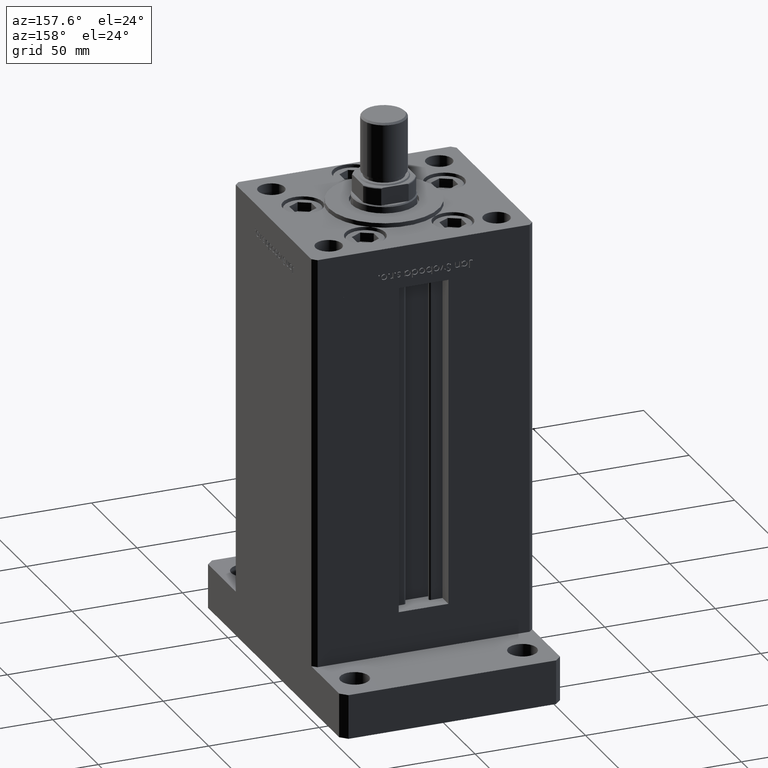
[diagram: clean part render]
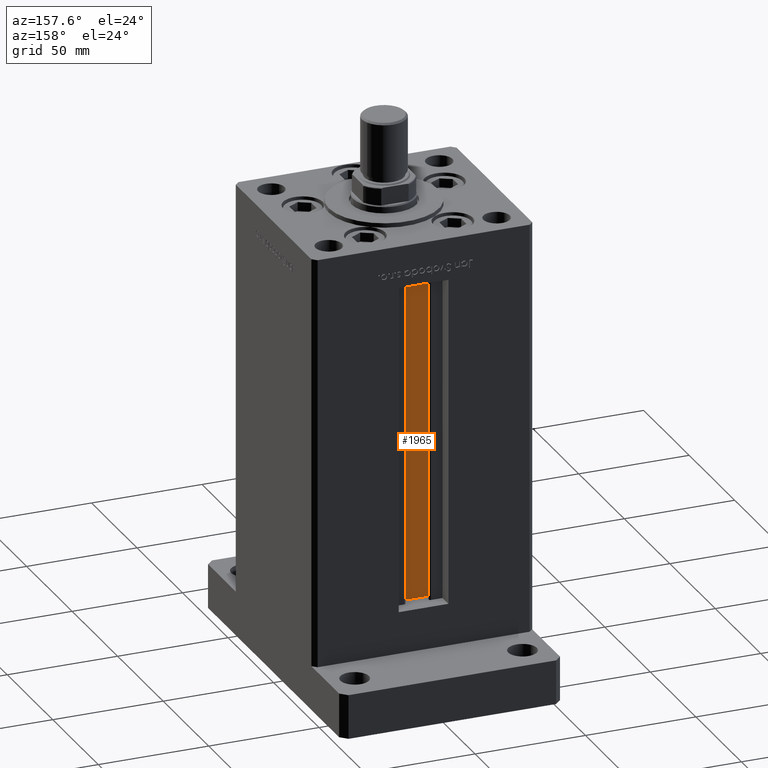
[diagram: same view with one face highlighted and labeled with its STEP entity id]
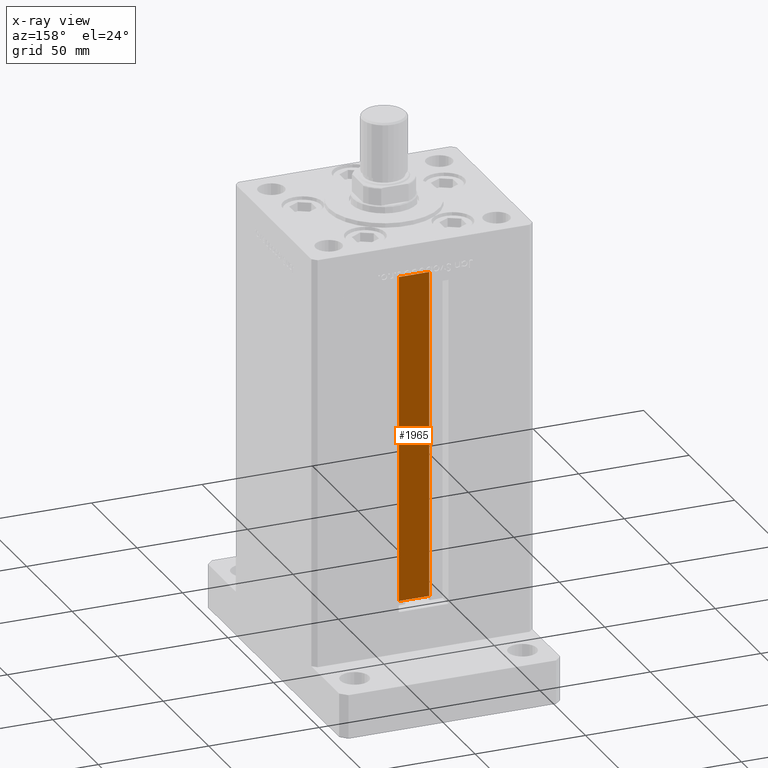
[diagram: x-ray of the same camera — body ghosted, the highlighted face saturated]
A machine part, auxiliary view. The second image highlights one B-rep face of the part: STEP entity #1965.
The next image is the same camera in x-ray: the body ghosted, the highlighted face saturated — about 0% of this face is hidden behind the body in this view.
In plain terms, the highlighted planar face has unit normal (0, -1, 0).
Its self-contained STEP definition (entity closure, byte-faithful):
#205 = VERTEX_POINT ( 'NONE', #25581 ) ;
#381 = VECTOR ( 'NONE', #10710, 1000.000000000000000 ) ;
#875 = DIRECTION ( 'NONE',  ( -1.000000000000000000, 0.000000000000000000, 0.000000000000000000 ) ) ;
#1284 = VERTEX_POINT ( 'NONE', #13872 ) ;
#1965 = ADVANCED_FACE ( 'NONE', ( #41124 ), #46043, .F. ) ;
#2220 = CARTESIAN_POINT ( 'NONE',  ( 6.876153656360465050, 32.99999999999986500, 0.000000000000000000 ) ) ;
#4418 = CARTESIAN_POINT ( 'NONE',  ( 6.876153656360465050, 32.99999999999986500, 0.000000000000000000 ) ) ;
#6363 = ORIENTED_EDGE ( 'NONE', *, *, #21271, .F. ) ;
#8156 = VECTOR ( 'NONE', #32253, 1000.000000000000000 ) ;
#8258 = VERTEX_POINT ( 'NONE', #11347 ) ;
#10710 = DIRECTION ( 'NONE',  ( -0.000000000000000000, -0.000000000000000000, 1.000000000000000000 ) ) ;
#11347 = CARTESIAN_POINT ( 'NONE',  ( 6.876153656360465050, 32.99999999999986500, 0.000000000000000000 ) ) ;
#11850 = ORIENTED_EDGE ( 'NONE', *, *, #44040, .F. ) ;
#12641 = DIRECTION ( 'NONE',  ( 0.000000000000000000, -1.000000000000000000, -0.000000000000000000 ) ) ;
#13872 = CARTESIAN_POINT ( 'NONE',  ( -6.876153656360465050, 32.99999999999986500, 0.000000000000000000 ) ) ;
#14010 = LINE ( 'NONE', #42759, #49460 ) ;
#15086 = LINE ( 'NONE', #2220, #381 ) ;
#15571 = CARTESIAN_POINT ( 'NONE',  ( -6.876153656360465050, 32.99999999999986500, 0.000000000000000000 ) ) ;
#17305 = DIRECTION ( 'NONE',  ( 0.000000000000000000, 0.000000000000000000, -1.000000000000000000 ) ) ;
#21271 = EDGE_CURVE ( 'NONE', #8258, #53323, #15086, .T. ) ;
#25574 = DIRECTION ( 'NONE',  ( 1.000000000000000000, -0.000000000000000000, -0.000000000000000000 ) ) ;
#25581 = CARTESIAN_POINT ( 'NONE',  ( -6.876153656360465050, 32.99999999999986500, 148.5000000000000000 ) ) ;
#26485 = ORIENTED_EDGE ( 'NONE', *, *, #28146, .F. ) ;
#28146 = EDGE_CURVE ( 'NONE', #1284, #8258, #50495, .T. ) ;
#28868 = CARTESIAN_POINT ( 'NONE',  ( 6.876153656360465050, 32.99999999999986500, 0.000000000000000000 ) ) ;
#32253 = DIRECTION ( 'NONE',  ( -0.000000000000000000, -0.000000000000000000, 1.000000000000000000 ) ) ;
#33054 = LINE ( 'NONE', #15571, #8156 ) ;
#39097 = EDGE_CURVE ( 'NONE', #1284, #205, #33054, .T. ) ;
#39623 = AXIS2_PLACEMENT_3D ( 'NONE', #4418, #12641, #17305 ) ;
#41124 = FACE_OUTER_BOUND ( 'NONE', #42138, .T. ) ;
#41728 = VECTOR ( 'NONE', #25574, 1000.000000000000000 ) ;
#42138 = EDGE_LOOP ( 'NONE', ( #6363, #26485, #42407, #11850 ) ) ;
#42407 = ORIENTED_EDGE ( 'NONE', *, *, #39097, .T. ) ;
#42759 = CARTESIAN_POINT ( 'NONE',  ( 0.000000000000000000, 32.99999999999986500, 148.5000000000000000 ) ) ;
#44040 = EDGE_CURVE ( 'NONE', #53323, #205, #14010, .T. ) ;
#44954 = CARTESIAN_POINT ( 'NONE',  ( 6.876153656360465050, 32.99999999999986500, 148.5000000000000000 ) ) ;
#46043 = PLANE ( 'NONE',  #39623 ) ;
#49460 = VECTOR ( 'NONE', #875, 1000.000000000000000 ) ;
#50495 = LINE ( 'NONE', #28868, #41728 ) ;
#53323 = VERTEX_POINT ( 'NONE', #44954 ) ;